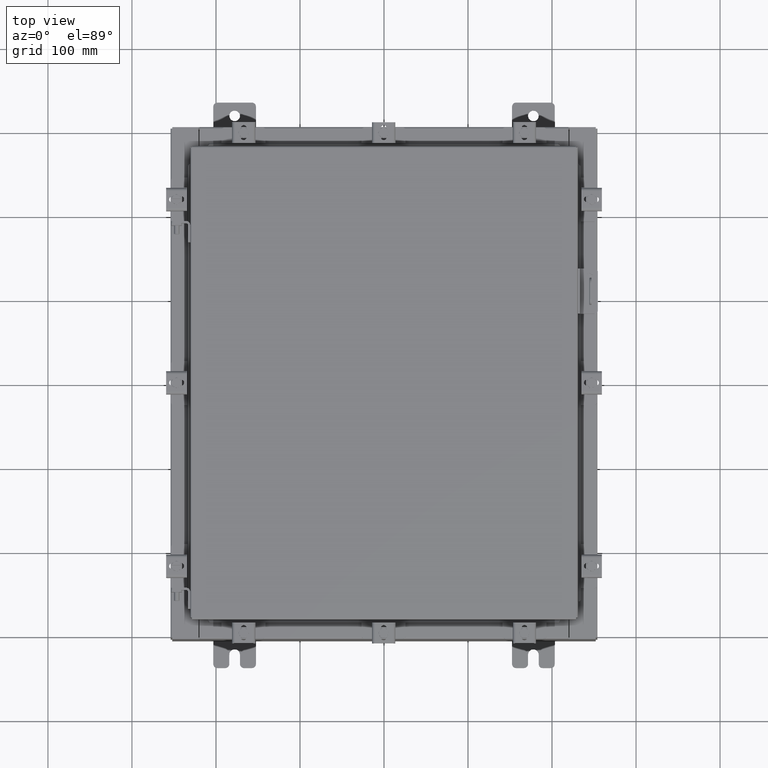
[diagram: clean part render]
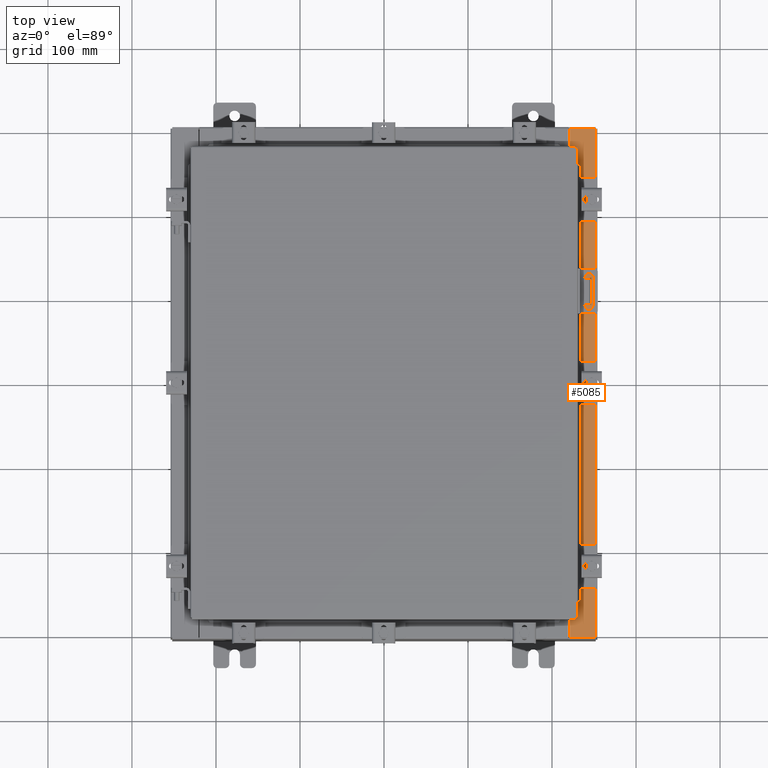
[diagram: same view with one face highlighted and labeled with its STEP entity id]
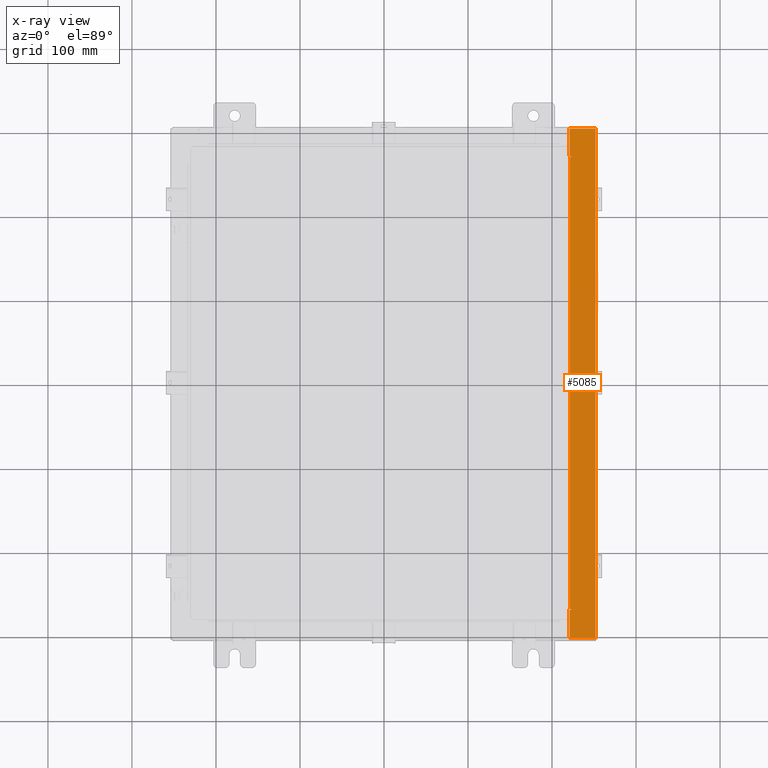
[diagram: x-ray of the same camera — body ghosted, the highlighted face saturated]
A machine part, top view. The second image highlights one B-rep face of the part: STEP entity #5085.
The next image is the same camera in x-ray: the body ghosted, the highlighted face saturated — about 0% of this face is hidden behind the body in this view.
In plain terms, the highlighted planar face has unit normal (-0, 0, -1).
Its self-contained STEP definition (entity closure, byte-faithful):
#267 = DIRECTION ( 'NONE',  ( -1.000000000000000000, 0.0000000000000000000, 7.132762385546378400E-015 ) ) ;
#295 = DIRECTION ( 'NONE',  ( -7.132762385546378400E-015, 0.0000000000000000000, -1.000000000000000000 ) ) ;
#308 = CARTESIAN_POINT ( 'NONE',  ( 4.252457061909005100E-014, 0.0000000000000000000, 5.925300000000072800 ) ) ;
#368 = PLANE ( 'NONE',  #12309 ) ;
#522 = CARTESIAN_POINT ( 'NONE',  ( 8.712700000000021200, 10.59374999999999600, 5.925300000000011600 ) ) ;
#761 = CARTESIAN_POINT ( 'NONE',  ( 8.699700000000019500, 0.0000000000000000000, 5.925300000000009800 ) ) ;
#780 = VERTEX_POINT ( 'NONE', #10316 ) ;
#798 = LINE ( 'NONE', #15127, #18251 ) ;
#1081 = EDGE_CURVE ( 'NONE', #13602, #13267, #6698, .T. ) ;
#1264 = CARTESIAN_POINT ( 'NONE',  ( 9.912300000000019700, -11.92530000000000000, 5.925300000000001800 ) ) ;
#1319 = CIRCLE ( 'NONE', #12002, 0.01867499999999949400 ) ;
#1679 = EDGE_CURVE ( 'NONE', #13267, #15250, #798, .T. ) ;
#2135 = EDGE_CURVE ( 'NONE', #13865, #5319, #1319, .T. ) ;
#2150 = CARTESIAN_POINT ( 'NONE',  ( 8.699700000000019500, 11.92529999999999600, 5.925300000000009800 ) ) ;
#2621 = CARTESIAN_POINT ( 'NONE',  ( 8.750050000000021200, 10.63109999999999500, 5.925300000000009800 ) ) ;
#3127 = CARTESIAN_POINT ( 'NONE',  ( 8.750050000000021200, -10.63109999999999600, 5.925300000000009800 ) ) ;
#3207 = CARTESIAN_POINT ( 'NONE',  ( 8.750050000000021200, 10.61242499999999500, 5.925300000000011600 ) ) ;
#3259 = VERTEX_POINT ( 'NONE', #19853 ) ;
#3304 = VECTOR ( 'NONE', #19638, 39.37007874015748100 ) ;
#3632 = VECTOR ( 'NONE', #10022, 39.37007874015748100 ) ;
#3642 = EDGE_CURVE ( 'NONE', #15250, #13865, #4926, .T. ) ;
#4342 = VECTOR ( 'NONE', #15712, 39.37007874015748100 ) ;
#4431 = ORIENTED_EDGE ( 'NONE', *, *, #21250, .T. ) ;
#4529 = VERTEX_POINT ( 'NONE', #6201 ) ;
#4926 = LINE ( 'NONE', #15626, #4342 ) ;
#5085 = ADVANCED_FACE ( 'NONE', ( #7588 ), #368, .F. ) ;
#5319 = VERTEX_POINT ( 'NONE', #2621 ) ;
#5501 = CIRCLE ( 'NONE', #18066, 0.01867499999999949400 ) ;
#5792 = ORIENTED_EDGE ( 'NONE', *, *, #14274, .F. ) ;
#6201 = CARTESIAN_POINT ( 'NONE',  ( 9.912300000000019700, 11.92529999999999800, 5.925300000000001800 ) ) ;
#6510 = VECTOR ( 'NONE', #20766, 39.37007874015748100 ) ;
#6698 = LINE ( 'NONE', #8094, #19424 ) ;
#6873 = ORIENTED_EDGE ( 'NONE', *, *, #16244, .F. ) ;
#7240 = DIRECTION ( 'NONE',  ( 0.0000000000000000000, -1.000000000000000000, 0.0000000000000000000 ) ) ;
#7432 = LINE ( 'NONE', #7516, #3304 ) ;
#7516 = CARTESIAN_POINT ( 'NONE',  ( 9.912300000000019700, -11.92530000000000000, 5.925300000000001800 ) ) ;
#7588 = FACE_OUTER_BOUND ( 'NONE', #19206, .T. ) ;
#8077 = CARTESIAN_POINT ( 'NONE',  ( 8.750050000000021200, -10.59374999999999800, 5.925300000000009800 ) ) ;
#8094 = CARTESIAN_POINT ( 'NONE',  ( 8.750050000000021200, -10.59374999999999800, 5.925300000000011600 ) ) ;
#8121 = DIRECTION ( 'NONE',  ( 7.132762385546378400E-015, 0.0000000000000000000, 1.000000000000000000 ) ) ;
#8183 = EDGE_CURVE ( 'NONE', #5319, #8817, #22102, .T. ) ;
#8264 = LINE ( 'NONE', #10230, #20980 ) ;
#8359 = LINE ( 'NONE', #17576, #13974 ) ;
#8442 = DIRECTION ( 'NONE',  ( 7.132762385546378400E-015, 0.0000000000000000000, 1.000000000000000000 ) ) ;
#8817 = VERTEX_POINT ( 'NONE', #14323 ) ;
#10022 = DIRECTION ( 'NONE',  ( -1.000000000000000000, 4.340572780399910900E-014, -2.170286390199955400E-014 ) ) ;
#10087 = ORIENTED_EDGE ( 'NONE', *, *, #19948, .T. ) ;
#10230 = CARTESIAN_POINT ( 'NONE',  ( 4.252457061909005100E-014, 11.92529999999999800, 5.925300000000072800 ) ) ;
#10316 = CARTESIAN_POINT ( 'NONE',  ( 8.699700000000019500, -11.92530000000000000, 5.925300000000009800 ) ) ;
#10835 = ORIENTED_EDGE ( 'NONE', *, *, #21544, .F. ) ;
#11021 = CARTESIAN_POINT ( 'NONE',  ( 4.252457061909005100E-014, -11.92530000000000000, 5.925300000000072800 ) ) ;
#12002 = AXIS2_PLACEMENT_3D ( 'NONE', #3207, #8442, #13425 ) ;
#12025 = CARTESIAN_POINT ( 'NONE',  ( 8.699700000000019500, -10.63109999999999600, 5.925300000000009800 ) ) ;
#12150 = LINE ( 'NONE', #12025, #6510 ) ;
#12309 = AXIS2_PLACEMENT_3D ( 'NONE', #308, #295, #267 ) ;
#12369 = ORIENTED_EDGE ( 'NONE', *, *, #2135, .F. ) ;
#12500 = VECTOR ( 'NONE', #12730, 39.37007874015748100 ) ;
#12730 = DIRECTION ( 'NONE',  ( 1.000000000000000000, 0.0000000000000000000, -7.132762385546378400E-015 ) ) ;
#12931 = DIRECTION ( 'NONE',  ( 0.0000000000000000000, -1.000000000000000000, 0.0000000000000000000 ) ) ;
#13055 = ORIENTED_EDGE ( 'NONE', *, *, #8183, .F. ) ;
#13267 = VERTEX_POINT ( 'NONE', #15756 ) ;
#13425 = DIRECTION ( 'NONE',  ( 1.000000000000000000, 0.0000000000000000000, 0.0000000000000000000 ) ) ;
#13433 = DIRECTION ( 'NONE',  ( -0.0000000000000000000, 1.000000000000000000, -0.0000000000000000000 ) ) ;
#13602 = VERTEX_POINT ( 'NONE', #8077 ) ;
#13865 = VERTEX_POINT ( 'NONE', #19127 ) ;
#13974 = VECTOR ( 'NONE', #7240, 39.37007874015748100 ) ;
#14274 = EDGE_CURVE ( 'NONE', #21172, #13602, #5501, .T. ) ;
#14323 = CARTESIAN_POINT ( 'NONE',  ( 8.699700000000019500, 10.63109999999999600, 5.925300000000009800 ) ) ;
#14764 = DIRECTION ( 'NONE',  ( -1.000000000000000000, 0.0000000000000000000, 0.0000000000000000000 ) ) ;
#15127 = CARTESIAN_POINT ( 'NONE',  ( 8.712700000000021200, -10.59375000000000000, 5.925300000000011600 ) ) ;
#15198 = VERTEX_POINT ( 'NONE', #2150 ) ;
#15250 = VERTEX_POINT ( 'NONE', #522 ) ;
#15556 = LINE ( 'NONE', #761, #16098 ) ;
#15626 = CARTESIAN_POINT ( 'NONE',  ( 8.712700000000021200, 10.59374999999999600, 5.925300000000011600 ) ) ;
#15659 = ORIENTED_EDGE ( 'NONE', *, *, #3642, .F. ) ;
#15712 = DIRECTION ( 'NONE',  ( 1.000000000000000000, 0.0000000000000000000, 0.0000000000000000000 ) ) ;
#15756 = CARTESIAN_POINT ( 'NONE',  ( 8.712700000000021200, -10.59374999999999800, 5.925300000000011600 ) ) ;
#16098 = VECTOR ( 'NONE', #12931, 39.37007874015748100 ) ;
#16244 = EDGE_CURVE ( 'NONE', #3259, #21172, #12150, .T. ) ;
#16862 = ORIENTED_EDGE ( 'NONE', *, *, #1081, .F. ) ;
#17576 = CARTESIAN_POINT ( 'NONE',  ( 8.699700000000019500, 0.0000000000000000000, 5.925300000000009800 ) ) ;
#17950 = ORIENTED_EDGE ( 'NONE', *, *, #18485, .T. ) ;
#18066 = AXIS2_PLACEMENT_3D ( 'NONE', #18490, #8121, #20224 ) ;
#18251 = VECTOR ( 'NONE', #13433, 39.37007874015748100 ) ;
#18485 = EDGE_CURVE ( 'NONE', #3259, #780, #8359, .T. ) ;
#18490 = CARTESIAN_POINT ( 'NONE',  ( 8.750050000000021200, -10.61242499999999800, 5.925300000000011600 ) ) ;
#19127 = CARTESIAN_POINT ( 'NONE',  ( 8.750050000000021200, 10.59374999999999600, 5.925300000000009800 ) ) ;
#19139 = ORIENTED_EDGE ( 'NONE', *, *, #1679, .F. ) ;
#19206 = EDGE_LOOP ( 'NONE', ( #6873, #17950, #22502, #10835, #4431, #10087, #13055, #12369, #15659, #19139, #16862, #5792 ) ) ;
#19424 = VECTOR ( 'NONE', #14764, 39.37007874015748100 ) ;
#19638 = DIRECTION ( 'NONE',  ( -0.0000000000000000000, -1.000000000000000000, -0.0000000000000000000 ) ) ;
#19853 = CARTESIAN_POINT ( 'NONE',  ( 8.699700000000019500, -10.63109999999999600, 5.925300000000009800 ) ) ;
#19948 = EDGE_CURVE ( 'NONE', #15198, #8817, #15556, .T. ) ;
#20224 = DIRECTION ( 'NONE',  ( 1.000000000000000000, 0.0000000000000000000, 0.0000000000000000000 ) ) ;
#20624 = DIRECTION ( 'NONE',  ( -1.000000000000000000, 0.0000000000000000000, 7.132762385546378400E-015 ) ) ;
#20766 = DIRECTION ( 'NONE',  ( 1.000000000000000000, 0.0000000000000000000, 2.170286390199955400E-014 ) ) ;
#20980 = VECTOR ( 'NONE', #20624, 39.37007874015748100 ) ;
#21151 = VERTEX_POINT ( 'NONE', #1264 ) ;
#21172 = VERTEX_POINT ( 'NONE', #3127 ) ;
#21221 = LINE ( 'NONE', #11021, #12500 ) ;
#21250 = EDGE_CURVE ( 'NONE', #4529, #15198, #8264, .T. ) ;
#21544 = EDGE_CURVE ( 'NONE', #4529, #21151, #7432, .T. ) ;
#22095 = EDGE_CURVE ( 'NONE', #780, #21151, #21221, .T. ) ;
#22102 = LINE ( 'NONE', #22143, #3632 ) ;
#22143 = CARTESIAN_POINT ( 'NONE',  ( 8.750050000000021200, 10.63109999999999500, 5.925300000000011600 ) ) ;
#22502 = ORIENTED_EDGE ( 'NONE', *, *, #22095, .T. ) ;